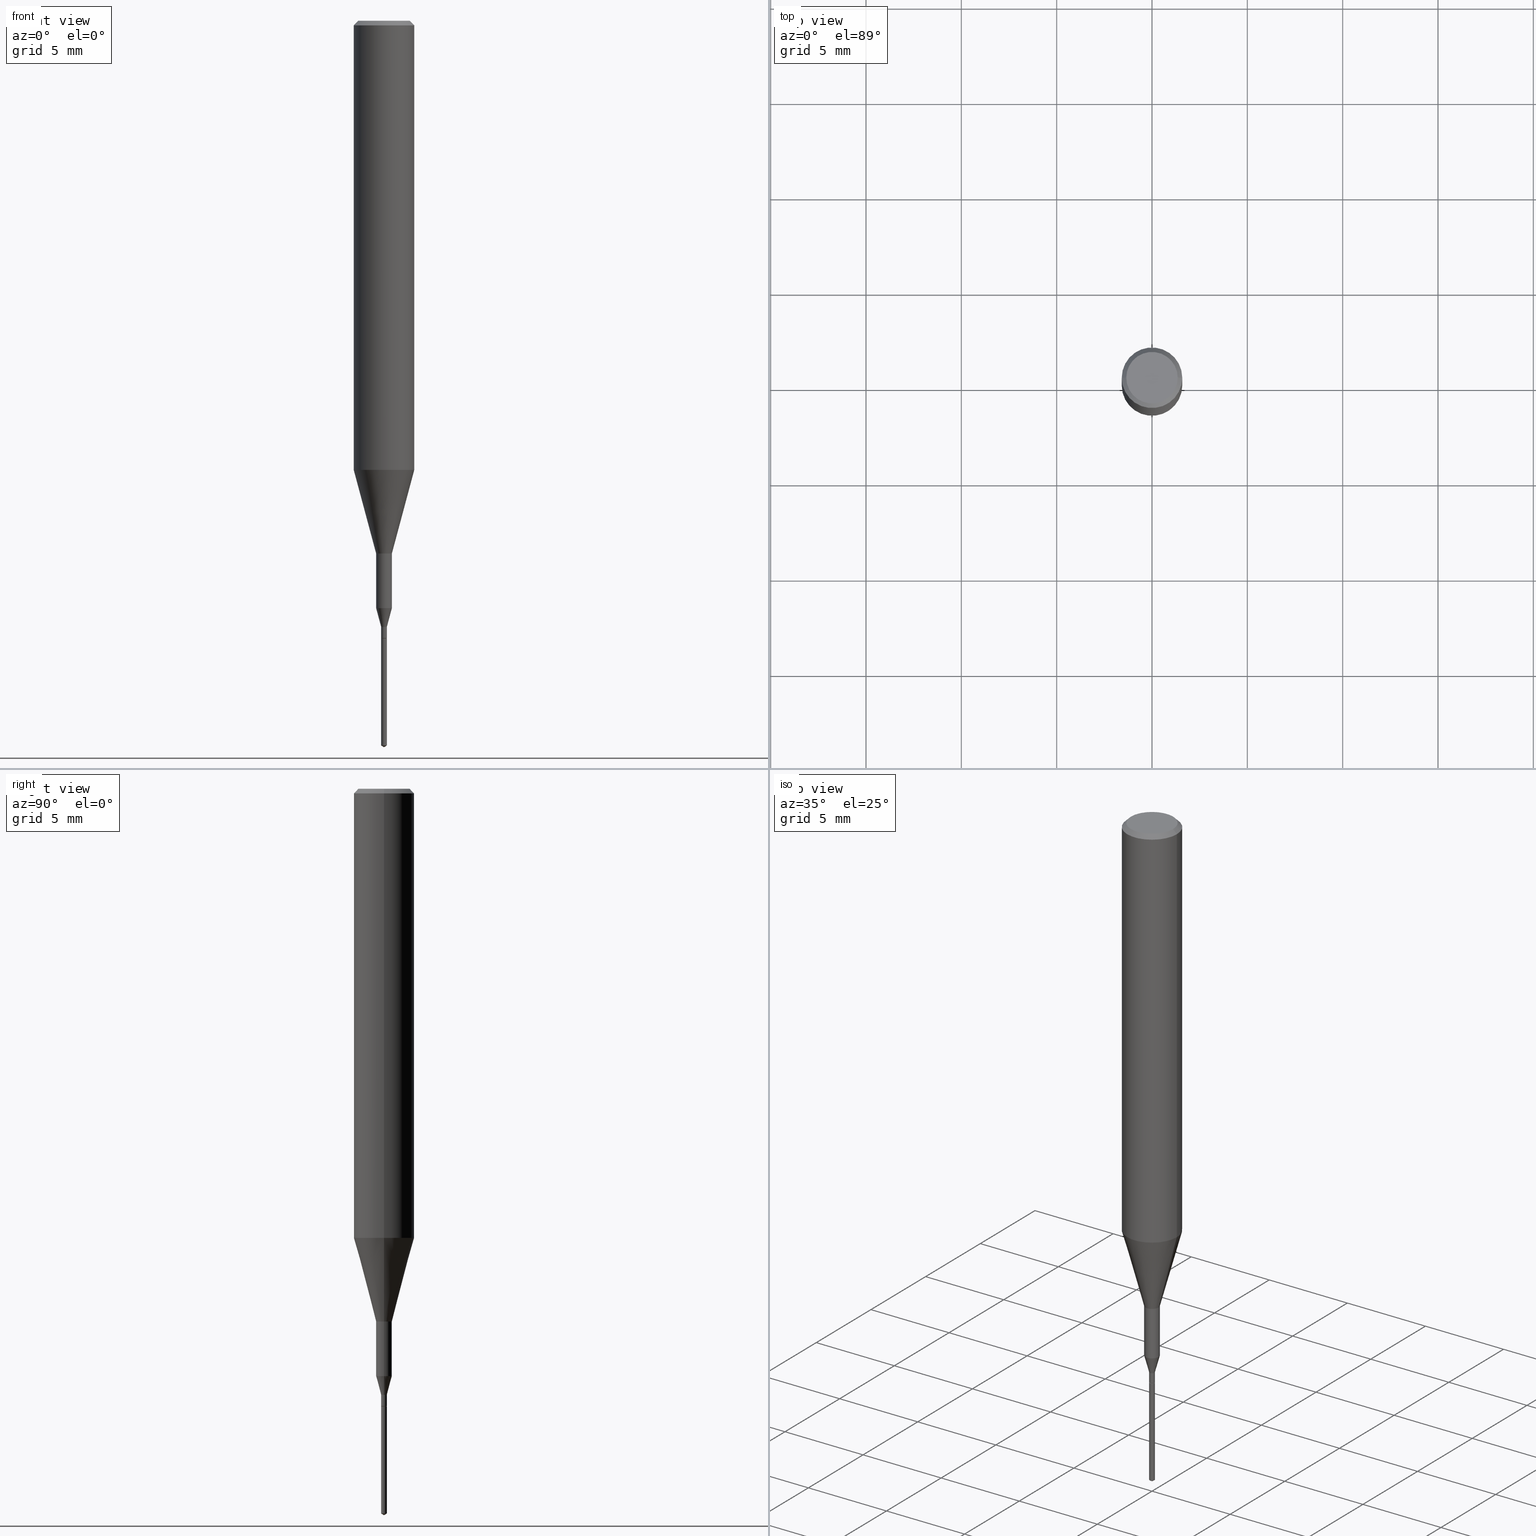
[diagram: canonical four-view strip — front | top / right | iso, engineering-drawing reading convention]
A machine part, canonical four-view strip (front | top / right | iso — engineering-drawing reading convention). The complete STEP part file that produces these views, byte-faithful:
ISO-10303-21;
HEADER;
FILE_DESCRIPTION (( 'STEP AP203' ),
    '1' );
FILE_NAME ('07132.STEP',
    '2024-04-19T13:30:08',
    ( '' ),
    ( '' ),
    'SwSTEP 2.0',
    'SolidWorks 2023',
    '' );
FILE_SCHEMA (( 'CONFIG_CONTROL_DESIGN' ));
ENDSEC;

DATA;
#1 = CARTESIAN_POINT ( 'NONE',  ( 0.000000000000000000, 0.000000000000000000, 0.000000000000000000 ) ) ;
#2 = LINE ( 'NONE', #504, #342 ) ;
#3 = CARTESIAN_POINT ( 'NONE',  ( -0.06250000000000011102, -2.793884921928740709E-15, -0.9273926501499395458 ) ) ;
#4 = CLOSED_SHELL ( 'NONE', ( #526, #120, #79, #102, #486, #5, #142, #52, #113, #287, #389, #286, #463, #404, #200, #524 ) ) ;
#5 = ADVANCED_FACE ( 'NONE', ( #181 ), #272, .T. ) ;
#6 = ORIENTED_EDGE ( 'NONE', *, *, #217, .T. ) ;
#7 = PERSON_AND_ORGANIZATION ( #20, #81 ) ;
#8 = EDGE_CURVE ( 'NONE', #480, #139, #584, .T. ) ;
#9 = LINE ( 'NONE', #535, #531 ) ;
#10 = VECTOR ( 'NONE', #387, 39.37007874015748854 ) ;
#11 = COORDINATED_UNIVERSAL_TIME_OFFSET ( 5, 0, .BEHIND. ) ;
#12 = AXIS2_PLACEMENT_3D ( 'NONE', #1, #420, #231 ) ;
#13 = CIRCLE ( 'NONE', #40, 0.005900000000000006802 ) ;
#14 = FACE_OUTER_BOUND ( 'NONE', #431, .T. ) ;
#15 = CARTESIAN_POINT ( 'NONE',  ( 0.06250000000000011102, -3.674409299134196572E-15, -0.9273926501499395458 ) ) ;
#16 = CARTESIAN_POINT ( 'NONE',  ( 0.06250000000000000000, -4.691678049070463404E-16, -0.009375000000000062103 ) ) ;
#17 = AXIS2_PLACEMENT_3D ( 'NONE', #514, #429, #351 ) ;
#18 = DIRECTION ( 'NONE',  ( -2.445468806185136597E-29, 3.491481338843145583E-15, 1.000000000000000000 ) ) ;
#19 = CARTESIAN_POINT ( 'NONE',  ( 0.000000000000000000, 0.000000000000000000, 0.000000000000000000 ) ) ;
#20 = PERSON ( 'UNSPECIFIED', 'UNSPECIFIED', 'UNSPECIFIED', ('UNSPECIFIED'), ('UNSPECIFIED'), ('UNSPECIFIED') ) ;
#21 = CC_DESIGN_APPROVAL ( #344, ( #525 ) ) ;
#22 = DIRECTION ( 'NONE',  ( -0.7071067811866236230, 7.493145998870628684E-15, 0.7071067811864711894 ) ) ;
#23 = ORIENTED_EDGE ( 'NONE', *, *, #143, .T. ) ;
#24 = EDGE_CURVE ( 'NONE', #434, #483, #248, .T. ) ;
#25 = DIRECTION ( 'NONE',  ( 1.000000000000000000, -6.982962677686266711E-15, 0.000000000000000000 ) ) ;
#26 = ORIENTED_EDGE ( 'NONE', *, *, #268, .F. ) ;
#27 = ORIENTED_EDGE ( 'NONE', *, *, #485, .T. ) ;
#28 = CYLINDRICAL_SURFACE ( 'NONE', #551, 0.01624999999999999709 ) ;
#29 = ORIENTED_EDGE ( 'NONE', *, *, #313, .F. ) ;
#30 = DIRECTION ( 'NONE',  ( -2.445468806185136597E-29, 3.491481338843145583E-15, 1.000000000000000000 ) ) ;
#31 = AXIS2_PLACEMENT_3D ( 'NONE', #227, #85, #579 ) ;
#32 = ORIENTED_EDGE ( 'NONE', *, *, #542, .T. ) ;
#33 = DIRECTION ( 'NONE',  ( -2.445468806185136597E-29, 3.491481338843145583E-15, 1.000000000000000000 ) ) ;
#34 = EDGE_CURVE ( 'NONE', #71, #483, #135, .T. ) ;
#35 = EDGE_CURVE ( 'NONE', #174, #491, #374, .T. ) ;
#36 = CARTESIAN_POINT ( 'NONE',  ( 0.05312499999999999861, -4.129888592719939842E-16, -5.787680772767651417E-18 ) ) ;
#37 = VECTOR ( 'NONE', #228, 39.37007874015748854 ) ;
#38 = ORIENTED_EDGE ( 'NONE', *, *, #363, .T. ) ;
#39 = CARTESIAN_POINT ( 'NONE',  ( -0.05312499999999999861, 3.873362110279099094E-16, -5.787680772773044021E-18 ) ) ;
#40 = AXIS2_PLACEMENT_3D ( 'NONE', #318, #402, #133 ) ;
#41 = DIRECTION ( 'NONE',  ( -2.448375364327009904E-29, 3.487318982152967289E-15, 1.000000000000000000 ) ) ;
#42 = ORIENTED_EDGE ( 'NONE', *, *, #236, .T. ) ;
#43 = PERSON_AND_ORGANIZATION ( #20, #81 ) ;
#44 = CIRCLE ( 'NONE', #550, 0.005900000000000000730 ) ;
#45 = LINE ( 'NONE', #409, #560 ) ;
#46 = CIRCLE ( 'NONE', #207, 0.005900000000000006802 ) ;
#47 = ORIENTED_EDGE ( 'NONE', *, *, #92, .T. ) ;
#48 = ADVANCED_BREP_SHAPE_REPRESENTATION ( '07132', ( #322, #583, #12 ), #225 ) ;
#49 = DATE_AND_TIME ( #506, #224 ) ;
#50 = FACE_OUTER_BOUND ( 'NONE', #556, .T. ) ;
#51 = CC_DESIGN_APPROVAL ( #403, ( #568 ) ) ;
#52 = ADVANCED_FACE ( 'NONE', ( #234 ), #454, .F. ) ;
#53 = DESIGN_CONTEXT ( 'detailed design', #254, 'design' ) ;
#54 = CARTESIAN_POINT ( 'NONE',  ( 2.292627005798580623E-31, -3.273263755165470801E-17, -0.009375000000000062103 ) ) ;
#55 = ORIENTED_EDGE ( 'NONE', *, *, #578, .T. ) ;
#56 = PERSON_AND_ORGANIZATION ( #20, #81 ) ;
#57 = CIRCLE ( 'NONE', #456, 0.01625000000000000056 ) ;
#58 = FACE_OUTER_BOUND ( 'NONE', #518, .T. ) ;
#59 = DIRECTION ( 'NONE',  ( 0.7071067811866236230, -2.468850131083054599E-15, 0.7071067811864711894 ) ) ;
#60 = VERTEX_POINT ( 'NONE', #534 ) ;
#61 = CARTESIAN_POINT ( 'NONE',  ( 3.672563046490514996E-29, -5.230978473229451328E-15, -1.500000000000000222 ) ) ;
#62 = EDGE_CURVE ( 'NONE', #215, #493, #2, .T. ) ;
#63 = CARTESIAN_POINT ( 'NONE',  ( -0.005900000000000006802, -4.407970944945744063E-15, -1.274500000000000188 ) ) ;
#64 = VERTEX_POINT ( 'NONE', #412 ) ;
#65 = CARTESIAN_POINT ( 'NONE',  ( -0.01624999999999999709, -3.922039169259372691E-15, -1.100000000000000089 ) ) ;
#66 = ORIENTED_EDGE ( 'NONE', *, *, #247, .T. ) ;
#67 = CYLINDRICAL_SURFACE ( 'NONE', #513, 0.01624999999999999709 ) ;
#68 = CIRCLE ( 'NONE', #188, 0.01625000000000000056 ) ;
#69 = CC_DESIGN_DATE_AND_TIME_ASSIGNMENT ( #105, #233, ( #179 ) ) ;
#70 = EDGE_CURVE ( 'NONE', #261, #356, #415, .T. ) ;
#71 = VERTEX_POINT ( 'NONE', #61 ) ;
#72 = CARTESIAN_POINT ( 'NONE',  ( 0.005900000000000001597, -4.119947979834898183E-17, 2.876944297719602825E-31 ) ) ;
#73 = ORIENTED_EDGE ( 'NONE', *, *, #464, .F. ) ;
#74 = EDGE_LOOP ( 'NONE', ( #255, #307, #42, #131 ) ) ;
#75 = DIRECTION ( 'NONE',  ( -2.445468806185136597E-29, 3.491481338843145583E-15, 1.000000000000000000 ) ) ;
#76 = EDGE_LOOP ( 'NONE', ( #288, #265 ) ) ;
#77 = CONICAL_SURFACE ( 'NONE', #203, 0.005400000000000000286, 0.7853981633975560817 ) ;
#78 = ORIENTED_EDGE ( 'NONE', *, *, #100, .T. ) ;
#79 = ADVANCED_FACE ( 'NONE', ( #184 ), #158, .T. ) ;
#80 = CARTESIAN_POINT ( 'NONE',  ( 0.000000000000000000, 0.000000000000000000, 0.000000000000000000 ) ) ;
#81 = ORGANIZATION ( 'UNSPECIFIED', 'UNSPECIFIED', '' ) ;
#82 = CIRCLE ( 'NONE', #425, 0.01624999999999999709 ) ;
#83 = CC_DESIGN_APPROVAL ( #475, ( #179 ) ) ;
#84 = ORIENTED_EDGE ( 'NONE', *, *, #501, .T. ) ;
#85 = DIRECTION ( 'NONE',  ( 2.445468806185136597E-29, -3.491481338843145583E-15, -1.000000000000000000 ) ) ;
#86 = LINE ( 'NONE', #484, #293 ) ;
#87 = DIRECTION ( 'NONE',  ( -2.445468806185136597E-29, 3.491481338843145583E-15, 1.000000000000000000 ) ) ;
#88 = VECTOR ( 'NONE', #155, 39.37007874015748143 ) ;
#89 = CARTESIAN_POINT ( 'NONE',  ( -4.119947979831778484E-17, -0.005900000000004451163, -1.275000000000000133 ) ) ;
#90 = CARTESIAN_POINT ( 'NONE',  ( 3.672628038554684134E-29, -5.230978473229451328E-15, -1.500000000000000222 ) ) ;
#91 = CC_DESIGN_DATE_AND_TIME_ASSIGNMENT ( #147, #289, ( #568 ) ) ;
#92 = EDGE_CURVE ( 'NONE', #320, #301, #45, .T. ) ;
#93 = DIRECTION ( 'NONE',  ( -2.448375364327009624E-29, 3.487318982152967684E-15, 1.000000000000000000 ) ) ;
#94 = ORIENTED_EDGE ( 'NONE', *, *, #206, .F. ) ;
#95 = DIRECTION ( 'NONE',  ( -2.445468806185136597E-29, 3.491481338843145583E-15, 1.000000000000000000 ) ) ;
#96 = DIRECTION ( 'NONE',  ( -2.445468806185136597E-29, 3.491481338843145583E-15, 1.000000000000000000 ) ) ;
#97 = PERSON_AND_ORGANIZATION ( #20, #81 ) ;
#98 = AXIS2_PLACEMENT_3D ( 'NONE', #419, #101, #152 ) ;
#99 = CIRCLE ( 'NONE', #319, 0.06250000000000000000 ) ;
#100 = EDGE_CURVE ( 'NONE', #308, #401, #326, .T. ) ;
#101 = DIRECTION ( 'NONE',  ( -2.448375364327009904E-29, 3.487318982152967289E-15, 1.000000000000000000 ) ) ;
#102 = ADVANCED_FACE ( 'NONE', ( #432 ), #28, .T. ) ;
#103 = PERSON_AND_ORGANIZATION ( #20, #81 ) ;
#104 = DIRECTION ( 'NONE',  ( -5.985567269335967312E-15, -0.8571673007021139989, 0.5150380749100513800 ) ) ;
#105 = DATE_AND_TIME ( #544, #348 ) ;
#106 = CARTESIAN_POINT ( 'NONE',  ( 3.060259664060080366E-29, -4.369239747428313470E-15, -1.251400000000000290 ) ) ;
#107 = DIRECTION ( 'NONE',  ( 1.000000000000000000, -6.982962677686265922E-15, 0.000000000000000000 ) ) ;
#108 = SHAPE_DEFINITION_REPRESENTATION ( #208, #48 ) ;
#109 = DIRECTION ( 'NONE',  ( 1.000000000000000000, -6.982962677686265922E-15, 0.000000000000000000 ) ) ;
#110 = CIRCLE ( 'NONE', #176, 0.01624999999999999709 ) ;
#111 = DIRECTION ( 'NONE',  ( 1.000000000000000000, -6.982962677686259611E-15, 0.000000000000000000 ) ) ;
#112 = VECTOR ( 'NONE', #173, 39.37007874015748143 ) ;
#113 = ADVANCED_FACE ( 'NONE', ( #574 ), #77, .T. ) ;
#114 = APPROVAL_DATE_TIME ( #49, #475 ) ;
#115 = DIRECTION ( 'NONE',  ( -2.445468806185136597E-29, 3.491481338843145583E-15, 1.000000000000000000 ) ) ;
#116 = DIRECTION ( 'NONE',  ( -2.448375364327009904E-29, 3.487318982152967289E-15, 1.000000000000000000 ) ) ;
#117 = FACE_OUTER_BOUND ( 'NONE', #124, .T. ) ;
#118 = ADVANCED_FACE ( 'NONE', ( #452 ), #278, .T. ) ;
#119 = AXIS2_PLACEMENT_3D ( 'NONE', #54, #499, #149 ) ;
#120 = ADVANCED_FACE ( 'NONE', ( #455 ), #280, .T. ) ;
#121 = ORIENTED_EDGE ( 'NONE', *, *, #510, .T. ) ;
#122 = CARTESIAN_POINT ( 'NONE',  ( 0.005899999999999997261, -4.410439227226661743E-15, -1.251400000000000290 ) ) ;
#123 = ORIENTED_EDGE ( 'NONE', *, *, #566, .T. ) ;
#124 = EDGE_LOOP ( 'NONE', ( #167, #6, #47, #394 ) ) ;
#125 = DIRECTION ( 'NONE',  ( 1.000000000000000000, -6.982962677686209913E-15, 0.000000000000000000 ) ) ;
#126 = ORIENTED_EDGE ( 'NONE', *, *, #198, .T. ) ;
#127 = ORIENTED_EDGE ( 'NONE', *, *, #577, .F. ) ;
#128 = CARTESIAN_POINT ( 'NONE',  ( 3.117972727886049049E-29, -4.451638707025011594E-15, -1.275000000000000133 ) ) ;
#129 = AXIS2_PLACEMENT_3D ( 'NONE', #252, #33, #263 ) ;
#130 = UNCERTAINTY_MEASURE_WITH_UNIT (LENGTH_MEASURE( 1.000000000000000082E-05 ), #532, 'distance_accuracy_value', 'NONE');
#131 = ORIENTED_EDGE ( 'NONE', *, *, #442, .F. ) ;
#132 = CARTESIAN_POINT ( 'NONE',  ( -0.06250000000000000000, 4.037025298037369984E-16, -0.009375000000000062103 ) ) ;
#133 = DIRECTION ( 'NONE',  ( 1.000000000000000000, -6.982962677686209913E-15, 0.000000000000000000 ) ) ;
#134 = ORIENTED_EDGE ( 'NONE', *, *, #588, .F. ) ;
#135 = LINE ( 'NONE', #90, #37 ) ;
#136 = DIRECTION ( 'NONE',  ( 1.000000000000000000, -6.982962677686258033E-15, 0.000000000000000000 ) ) ;
#137 = CC_DESIGN_PERSON_AND_ORGANIZATION_ASSIGNMENT ( #43, #590, ( #525 ) ) ;
#138 = CIRCLE ( 'NONE', #397, 0.005899999999999997261 ) ;
#139 = VERTEX_POINT ( 'NONE', #16 ) ;
#140 = DIRECTION ( 'NONE',  ( -2.445468806185136597E-29, 3.491481338843145583E-15, 1.000000000000000000 ) ) ;
#141 = DIRECTION ( 'NONE',  ( -6.982962677686265922E-15, -1.000000000000000000, 0.000000000000000000 ) ) ;
#142 = ADVANCED_FACE ( 'NONE', ( #14 ), #328, .T. ) ;
#143 = EDGE_CURVE ( 'NONE', #493, #437, #138, .T. ) ;
#144 = DIRECTION ( 'NONE',  ( -2.445468806185136877E-29, 3.491481338843145188E-15, 1.000000000000000000 ) ) ;
#145 = CARTESIAN_POINT ( 'NONE',  ( 3.117972727886049049E-29, -4.451638707025011594E-15, -1.275000000000000133 ) ) ;
#146 = EDGE_LOOP ( 'NONE', ( #474, #78, #489, #303 ) ) ;
#147 = DATE_AND_TIME ( #194, #161 ) ;
#148 = VECTOR ( 'NONE', #538, 39.37007874015748143 ) ;
#149 = DIRECTION ( 'NONE',  ( -1.000000000000000000, 6.982962677686266711E-15, 0.000000000000000000 ) ) ;
#150 = AXIS2_PLACEMENT_3D ( 'NONE', #19, #75, #258 ) ;
#151 = SECURITY_CLASSIFICATION_LEVEL ( 'unclassified' ) ;
#152 = DIRECTION ( 'NONE',  ( -6.982962677686264344E-15, -1.000000000000000000, 3.468864327941540966E-15 ) ) ;
#153 = APPLICATION_PROTOCOL_DEFINITION ( 'international standard', 'config_control_design', 1994, #245 ) ;
#154 = DIRECTION ( 'NONE',  ( -2.445468806185136597E-29, 3.491481338843145583E-15, 1.000000000000000000 ) ) ;
#155 = DIRECTION ( 'NONE',  ( -2.445468806185136877E-29, 3.491481338843145188E-15, 1.000000000000000000 ) ) ;
#156 = ADVANCED_FACE ( 'NONE', ( #548 ), #416, .F. ) ;
#157 = CARTESIAN_POINT ( 'NONE',  ( -4.119947979831779101E-17, -0.005900000000004452030, -1.275000000000000133 ) ) ;
#158 = CONICAL_SURFACE ( 'NONE', #448, 0.06250000000000011102, 0.2617993877991501850 ) ;
#159 = AXIS2_PLACEMENT_3D ( 'NONE', #555, #390, #562 ) ;
#160 = CARTESIAN_POINT ( 'NONE',  ( 2.292627005798580623E-31, -3.273263755165470801E-17, -0.009375000000000062103 ) ) ;
#161 = LOCAL_TIME ( 9, 30, 8.000000000000000000, #498 ) ;
#162 = EDGE_CURVE ( 'NONE', #356, #417, #450, .T. ) ;
#163 = CARTESIAN_POINT ( 'NONE',  ( 0.000000000000000000, 0.000000000000000000, 0.000000000000000000 ) ) ;
#164 = EDGE_LOOP ( 'NONE', ( #219, #407, #189, #73 ) ) ;
#165 = DIRECTION ( 'NONE',  ( -2.445468806185136597E-29, 3.491481338843145583E-15, 1.000000000000000000 ) ) ;
#166 = VECTOR ( 'NONE', #477, 39.37007874015748143 ) ;
#167 = ORIENTED_EDGE ( 'NONE', *, *, #100, .F. ) ;
#168 = DIRECTION ( 'NONE',  ( 1.000000000000000000, -6.982962677686265922E-15, 4.876176775795935793E-29 ) ) ;
#169 = ORIENTED_EDGE ( 'NONE', *, *, #332, .T. ) ;
#170 = ORIENTED_EDGE ( 'NONE', *, *, #222, .T. ) ;
#171 = CARTESIAN_POINT ( 'NONE',  ( 0.000000000000000000, 0.000000000000000000, 0.000000000000000000 ) ) ;
#172 = CARTESIAN_POINT ( 'NONE',  ( 0.01625000000000000056, -4.347848398425718540E-15, -1.212773274141662361 ) ) ;
#173 = DIRECTION ( 'NONE',  ( -2.445468806185136877E-29, 3.491481338843145188E-15, 1.000000000000000000 ) ) ;
#174 = VERTEX_POINT ( 'NONE', #157 ) ;
#175 = CARTESIAN_POINT ( 'NONE',  ( 1.415359278996747967E-46, -2.020757941330909984E-32, -5.787680772770392401E-18 ) ) ;
#176 = AXIS2_PLACEMENT_3D ( 'NONE', #505, #338, #111 ) ;
#177 = DIRECTION ( 'NONE',  ( 1.000000000000000000, -6.982962677686266711E-15, 0.000000000000000000 ) ) ;
#178 = DIRECTION ( 'NONE',  ( 1.000000000000000000, -6.982962677686258033E-15, 0.000000000000000000 ) ) ;
#179 = PRODUCT_DEFINITION ( 'UNKNOWN', '', #525, #53 ) ;
#180 = EDGE_CURVE ( 'NONE', #301, #261, #292, .T. ) ;
#181 = FACE_OUTER_BOUND ( 'NONE', #349, .T. ) ;
#182 = ORIENTED_EDGE ( 'NONE', *, *, #355, .F. ) ;
#183 = DIRECTION ( 'NONE',  ( -1.000000000000000000, 6.982962677686265922E-15, -4.876176775795935793E-29 ) ) ;
#184 = FACE_OUTER_BOUND ( 'NONE', #306, .T. ) ;
#185 = CARTESIAN_POINT ( 'NONE',  ( 3.660177504071201066E-29, -5.223922661419486771E-15, -1.496454922347737471 ) ) ;
#186 = AXIS2_PLACEMENT_3D ( 'NONE', #381, #378, #375 ) ;
#187 = CARTESIAN_POINT ( 'NONE',  ( 2.292627005798580623E-31, -3.273263755165470801E-17, -0.009375000000000062103 ) ) ;
#188 = AXIS2_PLACEMENT_3D ( 'NONE', #315, #223, #178 ) ;
#189 = ORIENTED_EDGE ( 'NONE', *, *, #206, .T. ) ;
#190 = APPROVAL_ROLE ( '' ) ;
#191 = COORDINATED_UNIVERSAL_TIME_OFFSET ( 5, 0, .BEHIND. ) ;
#192 = CARTESIAN_POINT ( 'NONE',  ( 0.000000000000000000, 0.000000000000000000, 0.000000000000000000 ) ) ;
#193 = ORIENTED_EDGE ( 'NONE', *, *, #162, .T. ) ;
#194 = CALENDAR_DATE ( 2024, 19, 4 ) ;
#195 = CARTESIAN_POINT ( 'NONE',  ( 3.117972727886049049E-29, -4.451638707025011594E-15, -1.275000000000000133 ) ) ;
#196 = CARTESIAN_POINT ( 'NONE',  ( 3.117972727886049049E-29, -4.451638707025011594E-15, -1.275000000000000133 ) ) ;
#197 = DATE_AND_TIME ( #533, #314 ) ;
#198 = EDGE_CURVE ( 'NONE', #64, #461, #310, .T. ) ;
#199 = DIRECTION ( 'NONE',  ( -2.445468806185136597E-29, 3.491481338843145583E-15, 1.000000000000000000 ) ) ;
#200 = ADVANCED_FACE ( 'NONE', ( #58 ), #299, .T. ) ;
#201 = CARTESIAN_POINT ( 'NONE',  ( 1.415359278996747967E-46, -2.020757941330909984E-32, -5.787680772770392401E-18 ) ) ;
#202 = DIRECTION ( 'NONE',  ( 1.000000000000000000, -6.982962677686267499E-15, 4.876176775795936353E-29 ) ) ;
#203 = AXIS2_PLACEMENT_3D ( 'NONE', #195, #18, #296 ) ;
#204 = DIRECTION ( 'NONE',  ( 0.2588190451025214611, 1.565188264969620982E-15, 0.9659258262890679791 ) ) ;
#205 = CIRCLE ( 'NONE', #17, 0.005400000000000000286 ) ;
#206 = EDGE_CURVE ( 'NONE', #261, #139, #240, .T. ) ;
#207 = AXIS2_PLACEMENT_3D ( 'NONE', #347, #309, #125 ) ;
#208 = PRODUCT_DEFINITION_SHAPE ( 'NONE', 'NONE',  #179 ) ;
#209 = FACE_OUTER_BOUND ( 'NONE', #428, .T. ) ;
#210 = DIRECTION ( 'NONE',  ( 1.000000000000000000, -6.982962677686258033E-15, 0.000000000000000000 ) ) ;
#211 = ORIENTED_EDGE ( 'NONE', *, *, #198, .F. ) ;
#212 = ORIENTED_EDGE ( 'NONE', *, *, #566, .F. ) ;
#213 = CARTESIAN_POINT ( 'NONE',  ( 0.01624999999999999709, -3.954102616239861778E-15, -1.100000000000000089 ) ) ;
#214 = CIRCLE ( 'NONE', #291, 0.05312499999999999861 ) ;
#215 = VERTEX_POINT ( 'NONE', #63 ) ;
#216 = DIRECTION ( 'NONE',  ( -0.2588190451025214611, 5.211531920934550253E-15, 0.9659258262890679791 ) ) ;
#217 = EDGE_CURVE ( 'NONE', #308, #320, #57, .T. ) ;
#218 = ORIENTED_EDGE ( 'NONE', *, *, #578, .F. ) ;
#219 = ORIENTED_EDGE ( 'NONE', *, *, #162, .F. ) ;
#220 = FACE_OUTER_BOUND ( 'NONE', #471, .T. ) ;
#221 = ORIENTED_EDGE ( 'NONE', *, *, #70, .T. ) ;
#222 = EDGE_CURVE ( 'NONE', #301, #401, #110, .T. ) ;
#223 = DIRECTION ( 'NONE',  ( -2.445468806185136597E-29, 3.491481338843145583E-15, 1.000000000000000000 ) ) ;
#224 = LOCAL_TIME ( 9, 30, 8.000000000000000000, #449 ) ;
#225 =( GEOMETRIC_REPRESENTATION_CONTEXT ( 3 ) GLOBAL_UNCERTAINTY_ASSIGNED_CONTEXT ( ( #130 ) ) GLOBAL_UNIT_ASSIGNED_CONTEXT ( ( #532, #444, #411 ) ) REPRESENTATION_CONTEXT ( 'NONE', 'WORKASPACE' ) );
#226 = ORIENTED_EDGE ( 'NONE', *, *, #24, .T. ) ;
#227 = CARTESIAN_POINT ( 'NONE',  ( 2.292627005798580623E-31, -3.273263755165470801E-17, -0.009375000000000062103 ) ) ;
#228 = DIRECTION ( 'NONE',  ( 6.090539988449805257E-15, 0.8571673007021176627, 0.5150380749100453848 ) ) ;
#229 = CARTESIAN_POINT ( 'NONE',  ( 3.060259664060080366E-29, -4.369239747428313470E-15, -1.251400000000000290 ) ) ;
#230 = ORIENTED_EDGE ( 'NONE', *, *, #332, .F. ) ;
#231 = DIRECTION ( 'NONE',  ( 1.000000000000000000, 0.000000000000000000, 0.000000000000000000 ) ) ;
#232 = CARTESIAN_POINT ( 'NONE',  ( 0.005400000000000000286, -4.489346705484517649E-15, -1.275000000000000133 ) ) ;
#233 = DATE_TIME_ROLE ( 'creation_date' ) ;
#234 = FACE_OUTER_BOUND ( 'NONE', #470, .T. ) ;
#235 = CYLINDRICAL_SURFACE ( 'NONE', #279, 0.005899999999999998995 ) ;
#236 = EDGE_CURVE ( 'NONE', #64, #60, #382, .T. ) ;
#237 = EDGE_LOOP ( 'NONE', ( #564, #554 ) ) ;
#238 = PERSON_AND_ORGANIZATION ( #20, #81 ) ;
#239 = DIRECTION ( 'NONE',  ( -2.438088387897960049E-29, 3.491481338843145188E-15, 1.000000000000000000 ) ) ;
#240 = LINE ( 'NONE', #546, #88 ) ;
#241 = PERSON_AND_ORGANIZATION_ROLE ( 'creator' ) ;
#242 = APPROVAL_PERSON_ORGANIZATION ( #7, #344, #376 ) ;
#243 = DIRECTION ( 'NONE',  ( -2.448375364327009904E-29, 3.487318982152967289E-15, 1.000000000000000000 ) ) ;
#244 = ORIENTED_EDGE ( 'NONE', *, *, #236, .F. ) ;
#245 = APPLICATION_CONTEXT ( 'configuration controlled 3d designs of mechanical parts and assemblies' ) ;
#246 = DIRECTION ( 'NONE',  ( 1.000000000000000000, -6.982962677686266711E-15, 4.876176775795935232E-29 ) ) ;
#247 = EDGE_CURVE ( 'NONE', #71, #434, #9, .T. ) ;
#248 = CIRCLE ( 'NONE', #573, 0.005899999999999998995 ) ;
#249 = AXIS2_PLACEMENT_3D ( 'NONE', #192, #422, #246 ) ;
#250 = FACE_OUTER_BOUND ( 'NONE', #164, .T. ) ;
#251 = AXIS2_PLACEMENT_3D ( 'NONE', #275, #41, #141 ) ;
#252 = CARTESIAN_POINT ( 'NONE',  ( 2.267909797027042920E-29, -3.237974131778804114E-15, -0.9273926501499395458 ) ) ;
#253 = CARTESIAN_POINT ( 'NONE',  ( 3.117972727886049049E-29, -4.451638707025011594E-15, -1.275000000000000133 ) ) ;
#254 = APPLICATION_CONTEXT ( 'configuration controlled 3d designs of mechanical parts and assemblies' ) ;
#255 = ORIENTED_EDGE ( 'NONE', *, *, #363, .F. ) ;
#256 = CC_DESIGN_PERSON_AND_ORGANIZATION_ASSIGNMENT ( #325, #241, ( #179 ) ) ;
#257 = EDGE_LOOP ( 'NONE', ( #575, #66, #134 ) ) ;
#258 = DIRECTION ( 'NONE',  ( 1.000000000000000000, -6.982962677686266711E-15, 4.876176775795935232E-29 ) ) ;
#259 = ADVANCED_FACE ( 'NONE', ( #50 ), #235, .T. ) ;
#260 = VECTOR ( 'NONE', #59, 39.37007874015748854 ) ;
#261 = VERTEX_POINT ( 'NONE', #421 ) ;
#262 = ORIENTED_EDGE ( 'NONE', *, *, #34, .T. ) ;
#263 = DIRECTION ( 'NONE',  ( 1.000000000000000000, -6.982962677686265922E-15, 0.000000000000000000 ) ) ;
#264 = LOCAL_TIME ( 9, 30, 8.000000000000000000, #334 ) ;
#265 = ORIENTED_EDGE ( 'NONE', *, *, #313, .T. ) ;
#266 = DIRECTION ( 'NONE',  ( 1.000000000000000000, -6.982962677686220957E-15, 0.000000000000000000 ) ) ;
#267 = EDGE_CURVE ( 'NONE', #480, #571, #214, .T. ) ;
#268 = EDGE_CURVE ( 'NONE', #401, #356, #413, .T. ) ;
#269 = ORIENTED_EDGE ( 'NONE', *, *, #62, .T. ) ;
#270 = AXIS2_PLACEMENT_3D ( 'NONE', #370, #239, #380 ) ;
#271 = FACE_OUTER_BOUND ( 'NONE', #237, .T. ) ;
#272 = CYLINDRICAL_SURFACE ( 'NONE', #354, 0.005900000000000001597 ) ;
#273 = AXIS2_PLACEMENT_3D ( 'NONE', #80, #30, #168 ) ;
#274 = ORIENTED_EDGE ( 'NONE', *, *, #373, .F. ) ;
#275 = CARTESIAN_POINT ( 'NONE',  ( 3.660177504071201066E-29, -5.223922661419486771E-15, -1.496454922347737471 ) ) ;
#276 = VECTOR ( 'NONE', #93, 39.37007874015748143 ) ;
#277 = DIRECTION ( 'NONE',  ( 1.000000000000000000, -6.982962677686266711E-15, 4.875930095424100059E-29 ) ) ;
#278 = CONICAL_SURFACE ( 'NONE', #98, 65.52281426576944057, 1.029744258676661195 ) ;
#279 = AXIS2_PLACEMENT_3D ( 'NONE', #145, #243, #507 ) ;
#280 = CYLINDRICAL_SURFACE ( 'NONE', #249, 0.06250000000000005551 ) ;
#281 = CIRCLE ( 'NONE', #251, 0.005899999999999998995 ) ;
#282 = CIRCLE ( 'NONE', #366, 0.005899999999999997261 ) ;
#283 = APPLICATION_PROTOCOL_DEFINITION ( 'international standard', 'config_control_design', 1994, #254 ) ;
#284 = DIRECTION ( 'NONE',  ( -2.448375364327009904E-29, 3.487318982152967289E-15, 1.000000000000000000 ) ) ;
#285 = CARTESIAN_POINT ( 'NONE',  ( 2.965799210888450567E-29, -4.234375254913316863E-15, -1.212773274141662361 ) ) ;
#286 = ADVANCED_FACE ( 'NONE', ( #117 ), #67, .T. ) ;
#287 = ADVANCED_FACE ( 'NONE', ( #516 ), #393, .T. ) ;
#288 = ORIENTED_EDGE ( 'NONE', *, *, #35, .T. ) ;
#289 = DATE_TIME_ROLE ( 'classification_date' ) ;
#290 = DIRECTION ( 'NONE',  ( -2.445468806185136597E-29, 3.491481338843145583E-15, 1.000000000000000000 ) ) ;
#291 = AXIS2_PLACEMENT_3D ( 'NONE', #201, #115, #327 ) ;
#292 = LINE ( 'NONE', #15, #465 ) ;
#293 = VECTOR ( 'NONE', #492, 39.37007874015748143 ) ;
#294 = MECHANICAL_CONTEXT ( 'NONE', #245, 'mechanical' ) ;
#295 = DIMENSIONAL_EXPONENTS ( 1.000000000000000000, 0.000000000000000000, 0.000000000000000000, 0.000000000000000000, 0.000000000000000000, 0.000000000000000000, 0.000000000000000000 ) ;
#296 = DIRECTION ( 'NONE',  ( 1.000000000000000000, -6.982962677686296687E-15, 0.000000000000000000 ) ) ;
#297 = ORIENTED_EDGE ( 'NONE', *, *, #267, .F. ) ;
#298 = DIRECTION ( 'NONE',  ( -2.445468806185136597E-29, 3.491481338843145583E-15, 1.000000000000000000 ) ) ;
#299 = CONICAL_SURFACE ( 'NONE', #119, 0.06250000000000000000, 0.7853981633974453924 ) ;
#300 = FACE_OUTER_BOUND ( 'NONE', #561, .T. ) ;
#301 = VERTEX_POINT ( 'NONE', #213 ) ;
#302 = LINE ( 'NONE', #172, #10 ) ;
#303 = ORIENTED_EDGE ( 'NONE', *, *, #92, .F. ) ;
#304 = EDGE_CURVE ( 'NONE', #60, #437, #341, .T. ) ;
#305 = CYLINDRICAL_SURFACE ( 'NONE', #559, 0.005899999999999998995 ) ;
#306 = EDGE_LOOP ( 'NONE', ( #170, #391, #517, #589 ) ) ;
#307 = ORIENTED_EDGE ( 'NONE', *, *, #355, .T. ) ;
#308 = VERTEX_POINT ( 'NONE', #557 ) ;
#309 = DIRECTION ( 'NONE',  ( -2.445468806185136597E-29, 3.491481338843145583E-15, 1.000000000000000000 ) ) ;
#310 = CIRCLE ( 'NONE', #539, 0.005400000000000000286 ) ;
#311 = CONICAL_SURFACE ( 'NONE', #159, 65.52281426576944057, 1.029744258676661195 ) ;
#312 = DIRECTION ( 'NONE',  ( -0.7071067811865454633, 2.468850131082235367E-15, -0.7071067811865495711 ) ) ;
#313 = EDGE_CURVE ( 'NONE', #491, #174, #44, .T. ) ;
#314 = LOCAL_TIME ( 9, 30, 8.000000000000000000, #11 ) ;
#315 = CARTESIAN_POINT ( 'NONE',  ( 2.965799210888450567E-29, -4.234375254913316863E-15, -1.212773274141662361 ) ) ;
#316 = EDGE_LOOP ( 'NONE', ( #221, #193, #274, #94 ) ) ;
#317 = ORIENTED_EDGE ( 'NONE', *, *, #501, .F. ) ;
#318 = CARTESIAN_POINT ( 'NONE',  ( 3.116749993482957368E-29, -4.449892966355590090E-15, -1.274500000000000188 ) ) ;
#319 = AXIS2_PLACEMENT_3D ( 'NONE', #160, #436, #25 ) ;
#320 = VERTEX_POINT ( 'NONE', #430 ) ;
#321 = DIRECTION ( 'NONE',  ( -2.445468806185136597E-29, 3.491481338843145583E-15, 1.000000000000000000 ) ) ;
#322 = MANIFOLD_SOLID_BREP ( 'Body-Move/Copy2[1]', #423 ) ;
#323 = EDGE_CURVE ( 'NONE', #356, #261, #447, .T. ) ;
#324 = CARTESIAN_POINT ( 'NONE',  ( 4.192202140988253656E-17, 0.005899999999995548562, -1.275000000000000133 ) ) ;
#325 = PERSON_AND_ORGANIZATION ( #20, #81 ) ;
#326 = LINE ( 'NONE', #502, #112 ) ;
#327 = DIRECTION ( 'NONE',  ( 1.000000000000000000, -6.982962677686266711E-15, 4.875930095424100059E-29 ) ) ;
#328 = CONICAL_SURFACE ( 'NONE', #549, 0.005400000000000000286, 0.7853981633975560817 ) ;
#329 = EDGE_LOOP ( 'NONE', ( #297, #515, #435, #385 ) ) ;
#330 = ADVANCED_FACE ( 'NONE', ( #300 ), #305, .T. ) ;
#331 = DIRECTION ( 'NONE',  ( 1.000000000000000000, -6.982962677686220957E-15, 0.000000000000000000 ) ) ;
#332 = EDGE_CURVE ( 'NONE', #493, #308, #552, .T. ) ;
#333 = CARTESIAN_POINT ( 'NONE',  ( 3.117972727886049049E-29, -4.451638707025011594E-15, -1.275000000000000133 ) ) ;
#334 = COORDINATED_UNIVERSAL_TIME_OFFSET ( 5, 0, .BEHIND. ) ;
#335 = CARTESIAN_POINT ( 'NONE',  ( -0.06250000000000005551, 4.440892098500630106E-16, -3.074334431409318916E-30 ) ) ;
#336 = VECTOR ( 'NONE', #570, 39.37007874015748854 ) ;
#337 = PERSON_AND_ORGANIZATION ( #20, #81 ) ;
#338 = DIRECTION ( 'NONE',  ( -2.445468806185136597E-29, 3.491481338843145583E-15, 1.000000000000000000 ) ) ;
#339 = CARTESIAN_POINT ( 'NONE',  ( 2.965799210888450567E-29, -4.234375254913316863E-15, -1.212773274141662361 ) ) ;
#340 = ORIENTED_EDGE ( 'NONE', *, *, #576, .F. ) ;
#341 = LINE ( 'NONE', #72, #166 ) ;
#342 = VECTOR ( 'NONE', #545, 39.37007874015748143 ) ;
#343 = DIRECTION ( 'NONE',  ( -6.982962677686265133E-15, -1.000000000000000000, 0.000000000000000000 ) ) ;
#344 = APPROVAL ( #372, 'UNSPECIFIED' ) ;
#345 = ORIENTED_EDGE ( 'NONE', *, *, #304, .F. ) ;
#346 = AXIS2_PLACEMENT_3D ( 'NONE', #582, #521, #438 ) ;
#347 = CARTESIAN_POINT ( 'NONE',  ( 3.116749993482957368E-29, -4.449892966355590090E-15, -1.274500000000000188 ) ) ;
#348 = LOCAL_TIME ( 9, 30, 8.000000000000000000, #191 ) ;
#349 = EDGE_LOOP ( 'NONE', ( #32, #269, #212, #345 ) ) ;
#350 = ORIENTED_EDGE ( 'NONE', *, *, #35, .F. ) ;
#351 = DIRECTION ( 'NONE',  ( 1.000000000000000000, -6.982962677686296687E-15, 0.000000000000000000 ) ) ;
#352 = EDGE_LOOP ( 'NONE', ( #439, #445, #558, #368 ) ) ;
#353 = EDGE_CURVE ( 'NONE', #437, #320, #302, .T. ) ;
#354 = AXIS2_PLACEMENT_3D ( 'NONE', #405, #87, #400 ) ;
#355 = EDGE_CURVE ( 'NONE', #461, #64, #205, .T. ) ;
#356 = VERTEX_POINT ( 'NONE', #469 ) ;
#357 = FACE_OUTER_BOUND ( 'NONE', #585, .T. ) ;
#358 = VECTOR ( 'NONE', #22, 39.37007874015748854 ) ;
#359 = CARTESIAN_POINT ( 'NONE',  ( 7.076796394983739835E-47, -1.010378970665454992E-32, -2.893840386385196200E-18 ) ) ;
#360 = LINE ( 'NONE', #89, #276 ) ;
#361 = ORIENTED_EDGE ( 'NONE', *, *, #353, .T. ) ;
#362 = CARTESIAN_POINT ( 'NONE',  ( 2.965799210888450567E-29, -4.234375254913316863E-15, -1.212773274141662361 ) ) ;
#363 = EDGE_CURVE ( 'NONE', #461, #215, #473, .T. ) ;
#364 = AXIS2_PLACEMENT_3D ( 'NONE', #339, #298, #210 ) ;
#365 = DIRECTION ( 'NONE',  ( 2.438088387897960049E-29, -3.491481338843145188E-15, -1.000000000000000000 ) ) ;
#366 = AXIS2_PLACEMENT_3D ( 'NONE', #229, #140, #266 ) ;
#367 = DIRECTION ( 'NONE',  ( -2.448375364327009904E-29, 3.487318982152967289E-15, 1.000000000000000000 ) ) ;
#368 = ORIENTED_EDGE ( 'NONE', *, *, #143, .F. ) ;
#369 = PERSON_AND_ORGANIZATION_ROLE ( 'classification_officer' ) ;
#370 = CARTESIAN_POINT ( 'NONE',  ( 3.117972727886049049E-29, -4.451638707025011594E-15, -1.275000000000000133 ) ) ;
#371 = PRODUCT_RELATED_PRODUCT_CATEGORY ( 'detail', '', ( #426 ) ) ;
#372 = APPROVAL_STATUS ( 'not_yet_approved' ) ;
#373 = EDGE_CURVE ( 'NONE', #139, #417, #99, .T. ) ;
#374 = CIRCLE ( 'NONE', #395, 0.005900000000000000730 ) ;
#375 = DIRECTION ( 'NONE',  ( 6.982962677686265922E-15, 1.000000000000000000, -3.487318982152967684E-15 ) ) ;
#376 = APPROVAL_ROLE ( '' ) ;
#377 = DIRECTION ( 'NONE',  ( -6.982962677686265133E-15, -1.000000000000000000, 0.000000000000000000 ) ) ;
#378 = DIRECTION ( 'NONE',  ( 2.448375364327009344E-29, -3.487318982152967684E-15, -1.000000000000000000 ) ) ;
#379 = APPROVAL_DATE_TIME ( #197, #403 ) ;
#380 = DIRECTION ( 'NONE',  ( 1.000000000000000000, -6.982962677686265922E-15, 4.876176775795935793E-29 ) ) ;
#381 = CARTESIAN_POINT ( 'NONE',  ( 3.117972727886049049E-29, -4.451638707025011594E-15, -1.275000000000000133 ) ) ;
#382 = LINE ( 'NONE', #232, #260 ) ;
#383 = VECTOR ( 'NONE', #216, 39.37007874015748143 ) ;
#384 = DIRECTION ( 'NONE',  ( -6.982962677686265922E-15, -1.000000000000000000, 0.000000000000000000 ) ) ;
#385 = ORIENTED_EDGE ( 'NONE', *, *, #485, .F. ) ;
#386 = CC_DESIGN_SECURITY_CLASSIFICATION ( #568, ( #525 ) ) ;
#387 = DIRECTION ( 'NONE',  ( 0.2588190451025212391, 1.565188264969622362E-15, 0.9659258262890679791 ) ) ;
#388 = ORIENTED_EDGE ( 'NONE', *, *, #217, .F. ) ;
#389 = ADVANCED_FACE ( 'NONE', ( #392 ), #457, .T. ) ;
#390 = DIRECTION ( 'NONE',  ( -2.448375364327009904E-29, 3.487318982152967289E-15, 1.000000000000000000 ) ) ;
#391 = ORIENTED_EDGE ( 'NONE', *, *, #268, .T. ) ;
#392 = FACE_OUTER_BOUND ( 'NONE', #476, .T. ) ;
#393 = CYLINDRICAL_SURFACE ( 'NONE', #273, 0.005900000000000001597 ) ;
#394 = ORIENTED_EDGE ( 'NONE', *, *, #510, .F. ) ;
#395 = AXIS2_PLACEMENT_3D ( 'NONE', #451, #284, #377 ) ;
#396 = DIRECTION ( 'NONE',  ( -2.445468806185136597E-29, 3.491481338843145583E-15, 1.000000000000000000 ) ) ;
#397 = AXIS2_PLACEMENT_3D ( 'NONE', #106, #199, #331 ) ;
#398 = AXIS2_PLACEMENT_3D ( 'NONE', #175, #95, #277 ) ;
#399 = DIRECTION ( 'NONE',  ( 1.000000000000000000, -6.982962677686259611E-15, 0.000000000000000000 ) ) ;
#400 = DIRECTION ( 'NONE',  ( 1.000000000000000000, -6.982962677686265922E-15, 4.876176775795935793E-29 ) ) ;
#401 = VERTEX_POINT ( 'NONE', #65 ) ;
#402 = DIRECTION ( 'NONE',  ( -2.445468806185136597E-29, 3.491481338843145583E-15, 1.000000000000000000 ) ) ;
#403 = APPROVAL ( #453, 'UNSPECIFIED' ) ;
#404 = ADVANCED_FACE ( 'NONE', ( #250 ), #424, .T. ) ;
#405 = CARTESIAN_POINT ( 'NONE',  ( 0.000000000000000000, 0.000000000000000000, 0.000000000000000000 ) ) ;
#406 = LENGTH_MEASURE_WITH_UNIT ( LENGTH_MEASURE( 0.02539999999999999897 ), #490 );
#407 = ORIENTED_EDGE ( 'NONE', *, *, #323, .T. ) ;
#408 = PERSON_AND_ORGANIZATION_ROLE ( 'creator' ) ;
#409 = CARTESIAN_POINT ( 'NONE',  ( 0.01624999999999999709, -1.134731435124018242E-16, 7.923787260668394963E-31 ) ) ;
#410 = CONICAL_SURFACE ( 'NONE', #31, 0.06250000000000000000, 0.7853981633974453924 ) ;
#411 =( NAMED_UNIT ( * ) SI_UNIT ( $, .STERADIAN. ) SOLID_ANGLE_UNIT ( ) );
#412 = CARTESIAN_POINT ( 'NONE',  ( 0.005400000000000000286, -4.489346705484517649E-15, -1.275000000000000133 ) ) ;
#413 = LINE ( 'NONE', #3, #383 ) ;
#414 = APPROVAL_STATUS ( 'not_yet_approved' ) ;
#415 = CIRCLE ( 'NONE', #487, 0.06250000000000011102 ) ;
#416 = PLANE ( 'NONE',  #186 ) ;
#417 = VERTEX_POINT ( 'NONE', #433 ) ;
#418 = APPROVAL_ROLE ( '' ) ;
#419 = CARTESIAN_POINT ( 'NONE',  ( -9.272387369415651250E-28, 1.320597374413987365E-13, 37.87007874015748143 ) ) ;
#420 = DIRECTION ( 'NONE',  ( 0.000000000000000000, 0.000000000000000000, 1.000000000000000000 ) ) ;
#421 = CARTESIAN_POINT ( 'NONE',  ( 0.06250000000000011102, -3.674409299134196572E-15, -0.9273926501499395458 ) ) ;
#422 = DIRECTION ( 'NONE',  ( -2.445468806185136597E-29, 3.491481338843145583E-15, 1.000000000000000000 ) ) ;
#423 = CLOSED_SHELL ( 'NONE', ( #330, #427, #118, #259, #156 ) ) ;
#424 = CYLINDRICAL_SURFACE ( 'NONE', #150, 0.06250000000000005551 ) ;
#425 = AXIS2_PLACEMENT_3D ( 'NONE', #481, #321, #399 ) ;
#426 = PRODUCT ( '07132', '07132', '', ( #294 ) ) ;
#427 = ADVANCED_FACE ( 'NONE', ( #209 ), #311, .T. ) ;
#428 = EDGE_LOOP ( 'NONE', ( #569, #262, #565 ) ) ;
#429 = DIRECTION ( 'NONE',  ( -2.445468806185136597E-29, 3.491481338843145583E-15, 1.000000000000000000 ) ) ;
#430 = CARTESIAN_POINT ( 'NONE',  ( 0.01625000000000000056, -4.347848398425718540E-15, -1.212773274141662361 ) ) ;
#431 = EDGE_LOOP ( 'NONE', ( #126, #38, #567, #244 ) ) ;
#432 = FACE_OUTER_BOUND ( 'NONE', #146, .T. ) ;
#433 = CARTESIAN_POINT ( 'NONE',  ( -0.06250000000000000000, -1.191264174815165938E-15, -0.009375000000000062103 ) ) ;
#434 = VERTEX_POINT ( 'NONE', #520 ) ;
#435 = ORIENTED_EDGE ( 'NONE', *, *, #373, .T. ) ;
#436 = DIRECTION ( 'NONE',  ( -2.445468806185136597E-29, 3.491481338843145583E-15, 1.000000000000000000 ) ) ;
#437 = VERTEX_POINT ( 'NONE', #122 ) ;
#438 = DIRECTION ( 'NONE',  ( 1.000000000000000000, -6.982962677686265922E-15, 0.000000000000000000 ) ) ;
#439 = ORIENTED_EDGE ( 'NONE', *, *, #62, .F. ) ;
#440 = FACE_OUTER_BOUND ( 'NONE', #329, .T. ) ;
#441 = CC_DESIGN_PERSON_AND_ORGANIZATION_ASSIGNMENT ( #103, #540, ( #426 ) ) ;
#442 = EDGE_CURVE ( 'NONE', #215, #60, #46, .T. ) ;
#443 = DIRECTION ( 'NONE',  ( 0.7071067811865454633, -7.319954787623248157E-15, -0.7071067811865495711 ) ) ;
#444 =( NAMED_UNIT ( * ) PLANE_ANGLE_UNIT ( ) SI_UNIT ( $, .RADIAN. ) );
#445 = ORIENTED_EDGE ( 'NONE', *, *, #442, .T. ) ;
#446 = CARTESIAN_POINT ( 'NONE',  ( 2.267909797027042920E-29, -3.237974131778804114E-15, -0.9273926501499395458 ) ) ;
#447 = CIRCLE ( 'NONE', #129, 0.06250000000000011102 ) ;
#448 = AXIS2_PLACEMENT_3D ( 'NONE', #446, #96, #107 ) ;
#449 = COORDINATED_UNIVERSAL_TIME_OFFSET ( 5, 0, .BEHIND. ) ;
#450 = LINE ( 'NONE', #335, #148 ) ;
#451 = CARTESIAN_POINT ( 'NONE',  ( 3.117972727886049049E-29, -4.451638707025011594E-15, -1.275000000000000133 ) ) ;
#452 = FACE_OUTER_BOUND ( 'NONE', #257, .T. ) ;
#453 = APPROVAL_STATUS ( 'not_yet_approved' ) ;
#454 = PLANE ( 'NONE',  #270 ) ;
#455 = FACE_OUTER_BOUND ( 'NONE', #316, .T. ) ;
#456 = AXIS2_PLACEMENT_3D ( 'NONE', #285, #543, #497 ) ;
#457 = CONICAL_SURFACE ( 'NONE', #364, 0.01625000000000000056, 0.2617993877991499629 ) ;
#458 = DIRECTION ( 'NONE',  ( -2.445468806185136597E-29, 3.491481338843145583E-15, 1.000000000000000000 ) ) ;
#459 = DIRECTION ( 'NONE',  ( -2.445468806185136597E-29, 3.491481338843145583E-15, 1.000000000000000000 ) ) ;
#460 = DIRECTION ( 'NONE',  ( 1.000000000000000000, -6.982962677686296687E-15, 0.000000000000000000 ) ) ;
#461 = VERTEX_POINT ( 'NONE', #523 ) ;
#462 = CARTESIAN_POINT ( 'NONE',  ( -0.005400000000000000286, -4.413269399293965677E-15, -1.275000000000000133 ) ) ;
#463 = ADVANCED_FACE ( 'NONE', ( #357 ), #479, .T. ) ;
#464 = EDGE_CURVE ( 'NONE', #417, #139, #541, .T. ) ;
#465 = VECTOR ( 'NONE', #204, 39.37007874015748143 ) ;
#466 = CARTESIAN_POINT ( 'NONE',  ( -0.01625000000000000056, -4.118912060352299889E-15, -1.212773274141662361 ) ) ;
#467 = AXIS2_PLACEMENT_3D ( 'NONE', #359, #365, #183 ) ;
#468 = ORIENTED_EDGE ( 'NONE', *, *, #323, .F. ) ;
#469 = CARTESIAN_POINT ( 'NONE',  ( -0.06250000000000011102, -2.793884921928740709E-15, -0.9273926501499395458 ) ) ;
#470 = EDGE_LOOP ( 'NONE', ( #211, #182 ) ) ;
#471 = EDGE_LOOP ( 'NONE', ( #123, #169, #340, #496 ) ) ;
#472 = ORIENTED_EDGE ( 'NONE', *, *, #588, .T. ) ;
#473 = LINE ( 'NONE', #462, #358 ) ;
#474 = ORIENTED_EDGE ( 'NONE', *, *, #576, .T. ) ;
#475 = APPROVAL ( #414, 'UNSPECIFIED' ) ;
#476 = EDGE_LOOP ( 'NONE', ( #230, #23, #361, #388 ) ) ;
#477 = DIRECTION ( 'NONE',  ( -2.445468806185136877E-29, 3.491481338843145188E-15, 1.000000000000000000 ) ) ;
#478 = APPROVAL_PERSON_ORGANIZATION ( #337, #475, #190 ) ;
#479 = CONICAL_SURFACE ( 'NONE', #346, 0.06250000000000011102, 0.2617993877991501850 ) ;
#480 = VERTEX_POINT ( 'NONE', #36 ) ;
#481 = CARTESIAN_POINT ( 'NONE',  ( 2.690015686803650369E-29, -3.840629472727460101E-15, -1.100000000000000089 ) ) ;
#482 = APPROVAL_PERSON_ORGANIZATION ( #56, #403, #418 ) ;
#483 = VERTEX_POINT ( 'NONE', #529 ) ;
#484 = CARTESIAN_POINT ( 'NONE',  ( 4.192202140987707616E-17, 0.005899999999995546827, -1.275000000000000133 ) ) ;
#485 = EDGE_CURVE ( 'NONE', #571, #417, #586, .T. ) ;
#486 = ADVANCED_FACE ( 'NONE', ( #220 ), #553, .T. ) ;
#487 = AXIS2_PLACEMENT_3D ( 'NONE', #494, #154, #109 ) ;
#488 = PLANE ( 'NONE',  #467 ) ;
#489 = ORIENTED_EDGE ( 'NONE', *, *, #222, .F. ) ;
#490 =( LENGTH_UNIT ( ) NAMED_UNIT ( * ) SI_UNIT ( $, .METRE. ) );
#491 = VERTEX_POINT ( 'NONE', #324 ) ;
#492 = DIRECTION ( 'NONE',  ( -2.448375364327009624E-29, 3.487318982152967684E-15, 1.000000000000000000 ) ) ;
#493 = VERTEX_POINT ( 'NONE', #572 ) ;
#494 = CARTESIAN_POINT ( 'NONE',  ( 2.267909797027042920E-29, -3.237974131778804114E-15, -0.9273926501499395458 ) ) ;
#495 = DIRECTION ( 'NONE',  ( 1.000000000000000000, -6.982962677686296687E-15, 0.000000000000000000 ) ) ;
#496 = ORIENTED_EDGE ( 'NONE', *, *, #353, .F. ) ;
#497 = DIRECTION ( 'NONE',  ( 1.000000000000000000, -6.982962677686258033E-15, 0.000000000000000000 ) ) ;
#498 = COORDINATED_UNIVERSAL_TIME_OFFSET ( 5, 0, .BEHIND. ) ;
#499 = DIRECTION ( 'NONE',  ( 2.445468806185136597E-29, -3.491481338843145583E-15, -1.000000000000000000 ) ) ;
#500 = CC_DESIGN_PERSON_AND_ORGANIZATION_ASSIGNMENT ( #238, #369, ( #568 ) ) ;
#501 = EDGE_CURVE ( 'NONE', #483, #491, #86, .T. ) ;
#502 = CARTESIAN_POINT ( 'NONE',  ( -0.01624999999999999709, 1.154631945610162595E-16, -7.993269521664220284E-31 ) ) ;
#503 = DATE_AND_TIME ( #547, #264 ) ;
#504 = CARTESIAN_POINT ( 'NONE',  ( -0.005900000000000001597, 4.192202140984592232E-17, -2.902171703250394946E-31 ) ) ;
#505 = CARTESIAN_POINT ( 'NONE',  ( 2.690015686803650369E-29, -3.840629472727460101E-15, -1.100000000000000089 ) ) ;
#506 = CALENDAR_DATE ( 2024, 19, 4 ) ;
#507 = DIRECTION ( 'NONE',  ( -6.982962677686265922E-15, -1.000000000000000000, 0.000000000000000000 ) ) ;
#508 = VECTOR ( 'NONE', #312, 39.37007874015748143 ) ;
#509 = DIRECTION ( 'NONE',  ( 1.000000000000000000, -6.982962677686267499E-15, 4.876176775795936353E-29 ) ) ;
#510 = EDGE_CURVE ( 'NONE', #401, #301, #82, .T. ) ;
#511 = DIRECTION ( 'NONE',  ( -2.448375364327009904E-29, 3.487318982152967289E-15, 1.000000000000000000 ) ) ;
#512 = VECTOR ( 'NONE', #443, 39.37007874015748143 ) ;
#513 = AXIS2_PLACEMENT_3D ( 'NONE', #163, #165, #509 ) ;
#514 = CARTESIAN_POINT ( 'NONE',  ( 3.117972727886049049E-29, -4.451638707025011594E-15, -1.275000000000000133 ) ) ;
#515 = ORIENTED_EDGE ( 'NONE', *, *, #8, .T. ) ;
#516 = FACE_OUTER_BOUND ( 'NONE', #352, .T. ) ;
#517 = ORIENTED_EDGE ( 'NONE', *, *, #70, .F. ) ;
#518 = EDGE_LOOP ( 'NONE', ( #519, #127, #27, #528 ) ) ;
#519 = ORIENTED_EDGE ( 'NONE', *, *, #8, .F. ) ;
#520 = CARTESIAN_POINT ( 'NONE',  ( -4.119947979831235526E-17, -0.005900000000005223115, -1.496454922347737471 ) ) ;
#521 = DIRECTION ( 'NONE',  ( -2.445468806185136597E-29, 3.491481338843145583E-15, 1.000000000000000000 ) ) ;
#522 = AXIS2_PLACEMENT_3D ( 'NONE', #187, #587, #177 ) ;
#523 = CARTESIAN_POINT ( 'NONE',  ( -0.005400000000000000286, -4.410620172119854476E-15, -1.275000000000000133 ) ) ;
#524 = ADVANCED_FACE ( 'NONE', ( #271 ), #488, .F. ) ;
#525 = PRODUCT_DEFINITION_FORMATION_WITH_SPECIFIED_SOURCE ( 'ANY', '', #426, .NOT_KNOWN. ) ;
#526 = ADVANCED_FACE ( 'NONE', ( #440 ), #410, .T. ) ;
#527 = DIRECTION ( 'NONE',  ( -6.982962677686265922E-15, -1.000000000000000000, 0.000000000000000000 ) ) ;
#528 = ORIENTED_EDGE ( 'NONE', *, *, #464, .T. ) ;
#529 = CARTESIAN_POINT ( 'NONE',  ( 4.192202140988249958E-17, 0.005899999999994774876, -1.496454922347737471 ) ) ;
#530 = CARTESIAN_POINT ( 'NONE',  ( 0.06250000000000000000, -4.615137624123753937E-16, -0.009375000000000062103 ) ) ;
#531 = VECTOR ( 'NONE', #104, 39.37007874015748143 ) ;
#532 =( CONVERSION_BASED_UNIT ( 'INCH', #406 ) LENGTH_UNIT ( ) NAMED_UNIT ( #295 ) );
#533 = CALENDAR_DATE ( 2024, 19, 4 ) ;
#534 = CARTESIAN_POINT ( 'NONE',  ( 0.005900000000000006802, -4.491092446153939941E-15, -1.274500000000000188 ) ) ;
#535 = CARTESIAN_POINT ( 'NONE',  ( 3.665151323228738497E-29, -5.241592482789406233E-15, -1.500000000000000222 ) ) ;
#536 = ORIENTED_EDGE ( 'NONE', *, *, #180, .T. ) ;
#537 = APPROVAL_DATE_TIME ( #503, #344 ) ;
#538 = DIRECTION ( 'NONE',  ( -2.445468806185136877E-29, 3.491481338843145188E-15, 1.000000000000000000 ) ) ;
#539 = AXIS2_PLACEMENT_3D ( 'NONE', #333, #458, #460 ) ;
#540 = PERSON_AND_ORGANIZATION_ROLE ( 'design_owner' ) ;
#541 = CIRCLE ( 'NONE', #522, 0.06250000000000000000 ) ;
#542 = EDGE_CURVE ( 'NONE', #60, #215, #13, .T. ) ;
#543 = DIRECTION ( 'NONE',  ( -2.445468806185136597E-29, 3.491481338843145583E-15, 1.000000000000000000 ) ) ;
#544 = CALENDAR_DATE ( 2024, 19, 4 ) ;
#545 = DIRECTION ( 'NONE',  ( -2.445468806185136877E-29, 3.491481338843145188E-15, 1.000000000000000000 ) ) ;
#546 = CARTESIAN_POINT ( 'NONE',  ( 0.06250000000000005551, -4.364351673553920638E-16, 3.047610484872462323E-30 ) ) ;
#547 = CALENDAR_DATE ( 2024, 19, 4 ) ;
#548 = FACE_OUTER_BOUND ( 'NONE', #76, .T. ) ;
#549 = AXIS2_PLACEMENT_3D ( 'NONE', #196, #290, #495 ) ;
#550 = AXIS2_PLACEMENT_3D ( 'NONE', #253, #116, #343 ) ;
#551 = AXIS2_PLACEMENT_3D ( 'NONE', #171, #459, #202 ) ;
#552 = LINE ( 'NONE', #466, #336 ) ;
#553 = CONICAL_SURFACE ( 'NONE', #581, 0.01625000000000000056, 0.2617993877991499629 ) ;
#554 = ORIENTED_EDGE ( 'NONE', *, *, #267, .T. ) ;
#555 = CARTESIAN_POINT ( 'NONE',  ( -9.272387369415651250E-28, 1.320597374413987365E-13, 37.87007874015748143 ) ) ;
#556 = EDGE_LOOP ( 'NONE', ( #317, #472, #55, #29 ) ) ;
#557 = CARTESIAN_POINT ( 'NONE',  ( -0.01625000000000000056, -4.118912060352299889E-15, -1.212773274141662361 ) ) ;
#558 = ORIENTED_EDGE ( 'NONE', *, *, #304, .T. ) ;
#559 = AXIS2_PLACEMENT_3D ( 'NONE', #128, #511, #384 ) ;
#560 = VECTOR ( 'NONE', #144, 39.37007874015748143 ) ;
#561 = EDGE_LOOP ( 'NONE', ( #226, #84, #350, #218 ) ) ;
#562 = DIRECTION ( 'NONE',  ( -6.982962677686264344E-15, -1.000000000000000000, 3.468864327941540966E-15 ) ) ;
#563 = CC_DESIGN_PERSON_AND_ORGANIZATION_ASSIGNMENT ( #97, #408, ( #525 ) ) ;
#564 = ORIENTED_EDGE ( 'NONE', *, *, #577, .T. ) ;
#565 = ORIENTED_EDGE ( 'NONE', *, *, #24, .F. ) ;
#566 = EDGE_CURVE ( 'NONE', #437, #493, #282, .T. ) ;
#567 = ORIENTED_EDGE ( 'NONE', *, *, #542, .F. ) ;
#568 = SECURITY_CLASSIFICATION ( '', '', #151 ) ;
#569 = ORIENTED_EDGE ( 'NONE', *, *, #247, .F. ) ;
#570 = DIRECTION ( 'NONE',  ( -0.2588190451025212391, 5.211531920934549464E-15, 0.9659258262890679791 ) ) ;
#571 = VERTEX_POINT ( 'NONE', #39 ) ;
#572 = CARTESIAN_POINT ( 'NONE',  ( -0.005899999999999997261, -4.367644335482105359E-15, -1.251400000000000290 ) ) ;
#573 = AXIS2_PLACEMENT_3D ( 'NONE', #185, #367, #527 ) ;
#574 = FACE_OUTER_BOUND ( 'NONE', #74, .T. ) ;
#575 = ORIENTED_EDGE ( 'NONE', *, *, #34, .F. ) ;
#576 = EDGE_CURVE ( 'NONE', #320, #308, #68, .T. ) ;
#577 = EDGE_CURVE ( 'NONE', #571, #480, #580, .T. ) ;
#578 = EDGE_CURVE ( 'NONE', #434, #174, #360, .T. ) ;
#579 = DIRECTION ( 'NONE',  ( -1.000000000000000000, 6.982962677686266711E-15, 0.000000000000000000 ) ) ;
#580 = CIRCLE ( 'NONE', #398, 0.05312499999999999861 ) ;
#581 = AXIS2_PLACEMENT_3D ( 'NONE', #362, #396, #136 ) ;
#582 = CARTESIAN_POINT ( 'NONE',  ( 2.267909797027042920E-29, -3.237974131778804114E-15, -0.9273926501499395458 ) ) ;
#583 = MANIFOLD_SOLID_BREP ( 'Body-Move/Copy2[2]', #4 ) ;
#584 = LINE ( 'NONE', #530, #512 ) ;
#585 = EDGE_LOOP ( 'NONE', ( #26, #121, #536, #468 ) ) ;
#586 = LINE ( 'NONE', #132, #508 ) ;
#587 = DIRECTION ( 'NONE',  ( -2.445468806185136597E-29, 3.491481338843145583E-15, 1.000000000000000000 ) ) ;
#588 = EDGE_CURVE ( 'NONE', #483, #434, #281, .T. ) ;
#589 = ORIENTED_EDGE ( 'NONE', *, *, #180, .F. ) ;
#590 = PERSON_AND_ORGANIZATION_ROLE ( 'design_supplier' ) ;
ENDSEC;
END-ISO-10303-21;
